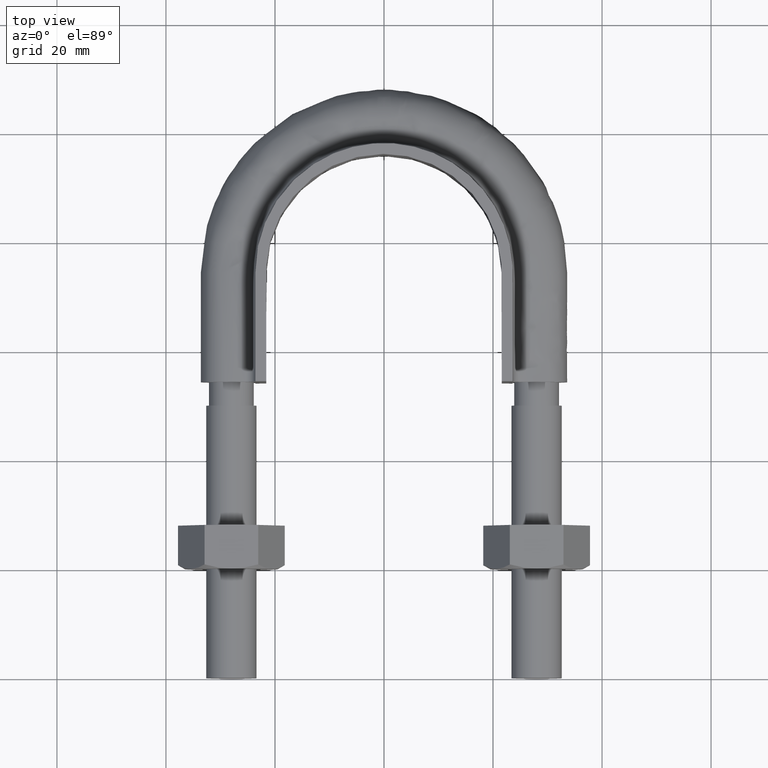
[diagram: clean part render]
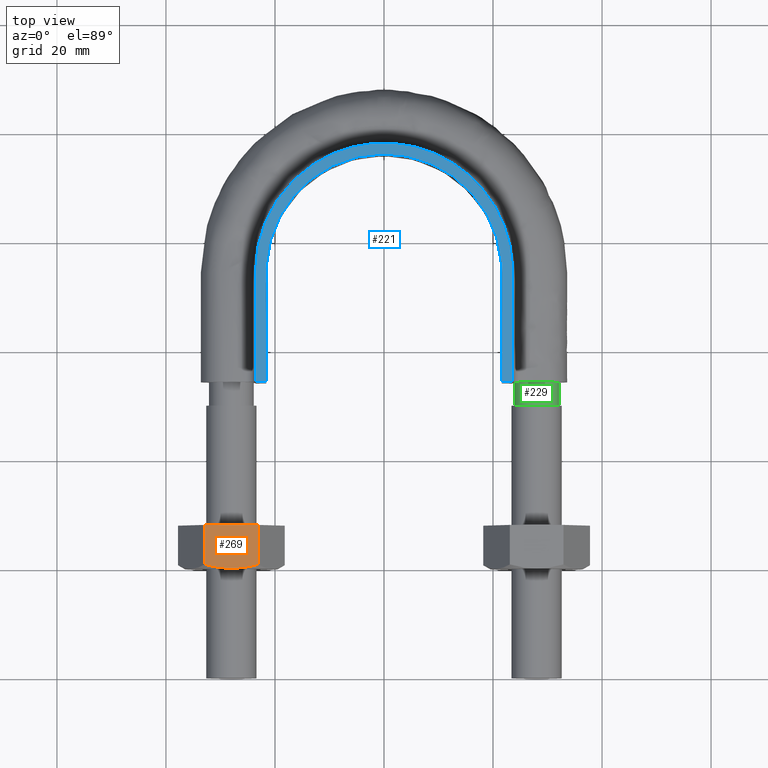
[diagram: same view with three faces highlighted in distinct colors, each labeled with its STEP entity id]
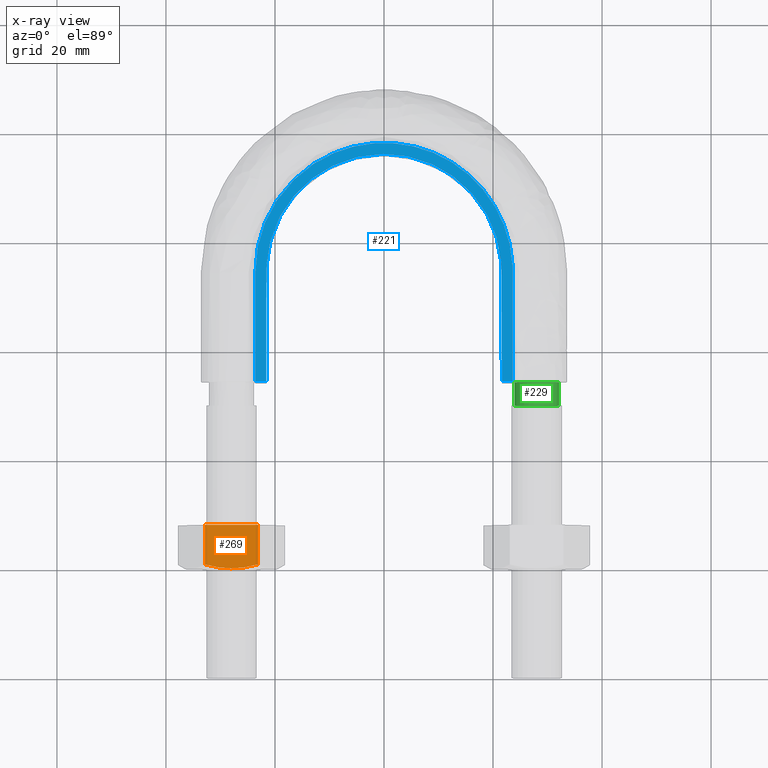
[diagram: x-ray of the same camera — body ghosted, the three highlighted faces saturated]
A machine part, top view with three faces highlighted in distinct colors.
The next image is the same camera in x-ray (body ghosted, the three faces saturated) — at least one of them is partly hidden behind the body in this view.
Their STEP definitions:

[orange] entity #269 — the highlighted planar face has unit normal (0, 0, -1).
#269 = ADVANCED_FACE( '', ( #411 ), #412, .F. );
#411 = FACE_OUTER_BOUND( '', #1408, .T. );
#412 = PLANE( '', #1409 );
#1408 = EDGE_LOOP( '', ( #1806, #1807, #1808, #1809, #1810 ) );
#1409 = AXIS2_PLACEMENT_3D( '', #1811, #1812, #1813 );
#1806 = ORIENTED_EDGE( '', *, *, #2097, .F. );
#1807 = ORIENTED_EDGE( '', *, *, #2087, .F. );
#1808 = ORIENTED_EDGE( '', *, *, #2094, .F. );
#1809 = ORIENTED_EDGE( '', *, *, #2076, .F. );
#1810 = ORIENTED_EDGE( '', *, *, #2101, .F. );
#1811 = CARTESIAN_POINT( '', ( -32.9074772881118, 28.0000000000000, 8.50000000000000 ) );
#1812 = DIRECTION( '', ( 5.55111512312578E-017, 6.12303176911189E-017, -1.00000000000000 ) );
#1813 = DIRECTION( '', ( -1.00000000000000, 0.000000000000000, -5.55111512312578E-017 ) );
#2076 = EDGE_CURVE( '', #2278, #2280, #2281, .T. );
#2087 = EDGE_CURVE( '', #2297, #2292, #2299, .T. );
#2094 = EDGE_CURVE( '', #2280, #2297, #2307, .T. );
#2097 = EDGE_CURVE( '', #2292, #2311, #2312, .T. );
#2101 = EDGE_CURVE( '', #2311, #2278, #2317, .F. );
#2278 = VERTEX_POINT( '', #2804 );
#2280 = VERTEX_POINT( '', #2806 );
#2281 = LINE( '', #2807, #2808 );
#2292 = VERTEX_POINT( '', #2827 );
#2297 = VERTEX_POINT( '', #2837 );
#2299 = B_SPLINE_CURVE_WITH_KNOTS( '', 3, ( #2839, #2840, #2841, #2842, #2843, #2844 ), .UNSPECIFIED., .F., .F., ( 4, 2, 4 ), ( 6.93889390390723E-018, 0.00246745482903606, 0.00493490965807212 ), .UNSPECIFIED. );
#2307 = LINE( '', #2863, #2864 );
#2311 = VERTEX_POINT( '', #2869 );
#2312 = B_SPLINE_CURVE_WITH_KNOTS( '', 3, ( #2870, #2871, #2872, #2873, #2874, #2875 ), .UNSPECIFIED., .F., .F., ( 4, 2, 4 ), ( 3.46944695195361E-018, 0.00246745482903605, 0.00493490965807211 ), .UNSPECIFIED. );
#2317 = LINE( '', #2886, #2887 );
#2804 = CARTESIAN_POINT( '', ( -32.8774993593029, 28.0000000000000, 8.50000000000000 ) );
#2806 = CARTESIAN_POINT( '', ( -23.1225006406971, 28.0000000000000, 8.50000000000000 ) );
#2807 = CARTESIAN_POINT( '', ( -23.1000000000000, 28.0000000000000, 8.50000000000000 ) );
#2808 = VECTOR( '', #3164, 1000.00000000000 );
#2827 = CARTESIAN_POINT( '', ( -28.0000000000000, 20.0000000000000, 8.50000000000000 ) );
#2837 = CARTESIAN_POINT( '', ( -23.1225006406971, 20.7505553499465, 8.50000000000000 ) );
#2839 = CARTESIAN_POINT( '', ( -23.1225006406971, 20.7505553499465, 8.50000000000000 ) );
#2840 = CARTESIAN_POINT( '', ( -23.9194282933227, 20.5215585493657, 8.50000000000000 ) );
#2841 = CARTESIAN_POINT( '', ( -24.7225568243372, 20.3328582843707, 8.50000000000000 ) );
#2842 = CARTESIAN_POINT( '', ( -26.3466937523143, 20.0716504305290, 8.50000000000000 ) );
#2843 = CARTESIAN_POINT( '', ( -27.1678340498093, 20.0000000000000, 8.50000000000000 ) );
#2844 = CARTESIAN_POINT( '', ( -28.0000000000000, 20.0000000000000, 8.50000000000000 ) );
#2863 = CARTESIAN_POINT( '', ( -23.1225006406971, 28.0000000000000, 8.50000000000000 ) );
#2864 = VECTOR( '', #3193, 1000.00000000000 );
#2869 = CARTESIAN_POINT( '', ( -32.8774993593029, 20.7505553499465, 8.50000000000000 ) );
#2870 = CARTESIAN_POINT( '', ( -28.0000000000000, 20.0000000000000, 8.50000000000000 ) );
#2871 = CARTESIAN_POINT( '', ( -28.8321659501907, 20.0000000000000, 8.50000000000000 ) );
#2872 = CARTESIAN_POINT( '', ( -29.6533062476857, 20.0716504305290, 8.50000000000000 ) );
#2873 = CARTESIAN_POINT( '', ( -31.2774431756629, 20.3328582843707, 8.50000000000000 ) );
#2874 = CARTESIAN_POINT( '', ( -32.0805717066773, 20.5215585493657, 8.50000000000000 ) );
#2875 = CARTESIAN_POINT( '', ( -32.8774993593029, 20.7505553499465, 8.50000000000000 ) );
#2886 = CARTESIAN_POINT( '', ( -32.8774993593029, 28.0000000000000, 8.50000000000000 ) );
#2887 = VECTOR( '', #3202, 1000.00000000000 );
#3164 = DIRECTION( '', ( 1.00000000000000, -2.44921270764475E-016, 5.55111512312578E-017 ) );
#3193 = DIRECTION( '', ( -2.44921270764475E-016, -1.00000000000000, -6.12303176911189E-017 ) );
#3202 = DIRECTION( '', ( -2.44921270764475E-016, -1.00000000000000, -6.12303176911189E-017 ) );

[blue] entity #221 — the highlighted planar face has unit normal (0, 0, 1).
#221 = ADVANCED_FACE( '', ( #301 ), #302, .T. );
#301 = FACE_OUTER_BOUND( '', #473, .T. );
#302 = PLANE( '', #474 );
#473 = EDGE_LOOP( '', ( #1480, #1481, #1482, #1483 ) );
#474 = AXIS2_PLACEMENT_3D( '', #1484, #1485, #1486 );
#1480 = ORIENTED_EDGE( '', *, *, #2004, .T. );
#1481 = ORIENTED_EDGE( '', *, *, #2011, .F. );
#1482 = ORIENTED_EDGE( '', *, *, #2012, .T. );
#1483 = ORIENTED_EDGE( '', *, *, #2013, .T. );
#1484 = CARTESIAN_POINT( '', ( 40.0000000000000, 114.300000000000, 12.5000000000000 ) );
#1485 = DIRECTION( '', ( 0.000000000000000, 0.000000000000000, 1.00000000000000 ) );
#1486 = DIRECTION( '', ( 1.00000000000000, 0.000000000000000, 0.000000000000000 ) );
#2004 = EDGE_CURVE( '', #2158, #2155, #2159, .F. );
#2011 = EDGE_CURVE( '', #2170, #2155, #2171, .T. );
#2012 = EDGE_CURVE( '', #2170, #2172, #2173, .F. );
#2013 = EDGE_CURVE( '', #2172, #2158, #2174, .F. );
#2155 = VERTEX_POINT( '', #2405 );
#2158 = VERTEX_POINT( '', #2409 );
#2159 = LINE( '', #2410, #2411 );
#2170 = VERTEX_POINT( '', #2495 );
#2171 = B_SPLINE_CURVE_WITH_KNOTS( '', 3, ( #2496, #2497, #2498, #2499, #2500, #2501, #2502, #2503, #2504, #2505, #2506, #2507, #2508, #2509, #2510, #2511, #2512, #2513, #2514, #2515, #2516, #2517, #2518, #2519, #2520, #2521, #2522, #2523, #2524, #2525, #2526, #2527, #2528, #2529, #2530, #2531, #2532, #2533, #2534, #2535, #2536, #2537, #2538, #2539, #2540, #2541, #2542, #2543, #2544, #2545, #2546, #2547, #2548, #2549, #2550, #2551, #2552, #2553, #2554, #2555, #2556, #2557, #2558, #2559, #2560, #2561, #2562, #2563, #2564, #2565 ), .UNSPECIFIED., .F., .F., ( 4, 1, 1, 1, 2, 2, 2, 2, 2, 2, 2, 2, 2, 2, 2, 2, 2, 2, 2, 2, 2, 2, 2, 2, 2, 2, 2, 2, 2, 2, 2, 2, 2, 2, 1, 1, 1, 4 ), ( 0.000000000000000, 0.0135231659011118, 0.0169039573763897, 0.0185943531140287, 0.0194395509828482, 0.0202847488516677, 0.0219751445893066, 0.0236655403269455, 0.0270463318022234, 0.0287367275398623, 0.0304271232775013, 0.0338079147527792, 0.0371887062280571, 0.0405694977033350, 0.0439502891786130, 0.0456406849162519, 0.0473310806538909, 0.0507118721291688, 0.0524022678668077, 0.0540926636044467, 0.0574734550797246, 0.0591638508173636, 0.0608542465550025, 0.0642350380302805, 0.0659254337679194, 0.0676158295055584, 0.0709966209808363, 0.0726870167184753, 0.0743774124561143, 0.0777582039313922, 0.0811389954066701, 0.0845197868819480, 0.0879005783572259, 0.0887457762260454, 0.0895909740948649, 0.0912813698325039, 0.0946621613077819, 0.108185327208894 ), .UNSPECIFIED. );
#2172 = VERTEX_POINT( '', #2566 );
#2173 = LINE( '', #2567, #2568 );
#2174 = B_SPLINE_CURVE_WITH_KNOTS( '', 3, ( #2569, #2570, #2571, #2572, #2573, #2574, #2575, #2576, #2577, #2578, #2579, #2580, #2581, #2582, #2583, #2584, #2585 ), .UNSPECIFIED., .F., .F., ( 4, 3, 1, 1, 1, 1, 1, 1, 1, 3, 4 ), ( 0.129870129870130, 1.00000000000000, 1.50000000000000, 2.00000000000000, 3.00000000000000, 4.00000000000000, 5.00000000000000, 6.00000000000000, 6.50000000000000, 7.00000000000000, 7.87012987012987 ), .UNSPECIFIED. );
#2405 = CARTESIAN_POINT( '', ( -21.6000000000000, 54.3000000000000, 12.5000000000000 ) );
#2409 = CARTESIAN_POINT( '', ( -23.6000000000000, 54.3000000000000, 12.5000000000000 ) );
#2410 = CARTESIAN_POINT( '', ( 40.0000000000000, 54.3000000000000, 12.5000000000000 ) );
#2411 = VECTOR( '', #3055, 1000.00000000000 );
#2495 = CARTESIAN_POINT( '', ( 21.6000000000000, 54.3000000000000, 12.5000000000000 ) );
#2496 = CARTESIAN_POINT( '', ( 21.6000000000000, 54.3000000000000, 12.5000000000000 ) );
#2497 = CARTESIAN_POINT( '', ( 21.6000000000000, 58.8078030796335, 12.5000000000000 ) );
#2498 = CARTESIAN_POINT( '', ( 21.6000000000000, 64.4425569291754, 12.5000000000000 ) );
#2499 = CARTESIAN_POINT( '', ( 21.6000000000000, 70.6407861636715, 12.5000000000000 ) );
#2500 = CARTESIAN_POINT( '', ( 21.6000000000000, 72.6129500110113, 12.5000000000000 ) );
#2501 = CARTESIAN_POINT( '', ( 21.6000000000000, 73.4581630884425, 12.5000000000000 ) );
#2502 = CARTESIAN_POINT( '', ( 21.6000000000000, 74.0216384733967, 12.5000000000000 ) );
#2503 = CARTESIAN_POINT( '', ( 21.6016868866855, 74.3033862855928, 12.5000000000000 ) );
#2504 = CARTESIAN_POINT( '', ( 21.5941473148947, 75.1485541327496, 12.5000000000000 ) );
#2505 = CARTESIAN_POINT( '', ( 21.5662932291955, 75.7118624196277, 12.5000000000000 ) );
#2506 = CARTESIAN_POINT( '', ( 21.4660466240226, 76.8382118050554, 12.5000000000000 ) );
#2507 = CARTESIAN_POINT( '', ( 21.3934997931487, 77.4007781127302, 12.5000000000000 ) );
#2508 = CARTESIAN_POINT( '', ( 21.1137244660228, 79.0644770260068, 12.5000000000000 ) );
#2509 = CARTESIAN_POINT( '', ( 20.8443432397078, 80.1498681355507, 12.5000000000000 ) );
#2510 = CARTESIAN_POINT( '', ( 20.3169229678080, 81.7426141857047, 12.5000000000000 ) );
#2511 = CARTESIAN_POINT( '', ( 20.1204432842000, 82.2676065264572, 12.5000000000000 ) );
#2512 = CARTESIAN_POINT( '', ( 19.6849320818905, 83.3053996627896, 12.5000000000000 ) );
#2513 = CARTESIAN_POINT( '', ( 19.4446614349743, 83.8204297574000, 12.5000000000000 ) );
#2514 = CARTESIAN_POINT( '', ( 18.6684950229906, 85.3244383250887, 12.5000000000000 ) );
#2515 = CARTESIAN_POINT( '', ( 18.0769270085057, 86.2744513721937, 12.5000000000000 ) );
#2516 = CARTESIAN_POINT( '', ( 16.7529195258009, 88.0743989142740, 12.5000000000000 ) );
#2517 = CARTESIAN_POINT( '', ( 16.0200911873579, 88.9252873863386, 12.5000000000000 ) );
#2518 = CARTESIAN_POINT( '', ( 14.4128259168034, 90.5214747358975, 12.5000000000000 ) );
#2519 = CARTESIAN_POINT( '', ( 13.5580348793817, 91.2474792809737, 12.5000000000000 ) );
#2520 = CARTESIAN_POINT( '', ( 11.7487973458944, 92.5590603088197, 12.5000000000000 ) );
#2521 = CARTESIAN_POINT( '', ( 10.7940352803573, 93.1441921113883, 12.5000000000000 ) );
#2522 = CARTESIAN_POINT( '', ( 9.28291683850486, 93.9106028409483, 12.5000000000000 ) );
#2523 = CARTESIAN_POINT( '', ( 8.76688933898165, 94.1469814262958, 12.5000000000000 ) );
#2524 = CARTESIAN_POINT( '', ( 7.72704803755933, 94.5751653360497, 12.5000000000000 ) );
#2525 = CARTESIAN_POINT( '', ( 7.20104342927320, 94.7681270441960, 12.5000000000000 ) );
#2526 = CARTESIAN_POINT( '', ( 5.60522003708375, 95.2851576032092, 12.5000000000000 ) );
#2527 = CARTESIAN_POINT( '', ( 4.51773658274788, 95.5478751313465, 12.5000000000000 ) );
#2528 = CARTESIAN_POINT( '', ( 2.85023521541969, 95.8159602825122, 12.5000000000000 ) );
#2529 = CARTESIAN_POINT( '', ( 2.28591125961181, 95.8842927632192, 12.5000000000000 ) );
#2530 = CARTESIAN_POINT( '', ( 1.16191586217196, 95.9755534961753, 12.5000000000000 ) );
#2531 = CARTESIAN_POINT( '', ( 0.601211685233152, 95.9988511425481, 12.5000000000000 ) );
#2532 = CARTESIAN_POINT( '', ( -1.07704505152025, 96.0021735987777, 12.5000000000000 ) );
#2533 = CARTESIAN_POINT( '', ( -2.19076731773873, 95.9160681926210, 12.5000000000000 ) );
#2534 = CARTESIAN_POINT( '', ( -3.85383561017253, 95.6571613761925, 12.5000000000000 ) );
#2535 = CARTESIAN_POINT( '', ( -4.40765029596283, 95.5489362348310, 12.5000000000000 ) );
#2536 = CARTESIAN_POINT( '', ( -5.50969437777179, 95.2885553897380, 12.5000000000000 ) );
#2537 = CARTESIAN_POINT( '', ( -6.05215769470156, 95.1378230506362, 12.5000000000000 ) );
#2538 = CARTESIAN_POINT( '', ( -7.65458034955573, 94.6257016671255, 12.5000000000000 ) );
#2539 = CARTESIAN_POINT( '', ( -8.68976887568339, 94.2048598409189, 12.5000000000000 ) );
#2540 = CARTESIAN_POINT( '', ( -10.1920361507628, 93.4523540893674, 12.5000000000000 ) );
#2541 = CARTESIAN_POINT( '', ( -10.6843068104453, 93.1811536314306, 12.5000000000000 ) );
#2542 = CARTESIAN_POINT( '', ( -11.6512116265084, 92.5964230902266, 12.5000000000000 ) );
#2543 = CARTESIAN_POINT( '', ( -12.1245518901083, 92.2835606581345, 12.5000000000000 ) );
#2544 = CARTESIAN_POINT( '', ( -13.4940506802498, 91.2993829505195, 12.5000000000000 ) );
#2545 = CARTESIAN_POINT( '', ( -14.3483977984834, 90.5779831351971, 12.5000000000000 ) );
#2546 = CARTESIAN_POINT( '', ( -15.5445244245929, 89.4008375271324, 12.5000000000000 ) );
#2547 = CARTESIAN_POINT( '', ( -15.9289126706019, 88.9925164105730, 12.5000000000000 ) );
#2548 = CARTESIAN_POINT( '', ( -16.6684043052147, 88.1432793403301, 12.5000000000000 ) );
#2549 = CARTESIAN_POINT( '', ( -17.0248134305993, 87.7004293677336, 12.5000000000000 ) );
#2550 = CARTESIAN_POINT( '', ( -18.0326739447613, 86.3423149081644, 12.5000000000000 ) );
#2551 = CARTESIAN_POINT( '', ( -18.6267452534930, 85.3943045919171, 12.5000000000000 ) );
#2552 = CARTESIAN_POINT( '', ( -19.6599214235238, 83.4134684385162, 12.5000000000000 ) );
#2553 = CARTESIAN_POINT( '', ( -20.1004689641877, 82.3791428767158, 12.5000000000000 ) );
#2554 = CARTESIAN_POINT( '', ( -20.8221292198643, 80.2326486444712, 12.5000000000000 ) );
#2555 = CARTESIAN_POINT( '', ( -21.0954136423923, 79.1448754351828, 12.5000000000000 ) );
#2556 = CARTESIAN_POINT( '', ( -21.4751329492846, 76.9416443697406, 12.5000000000000 ) );
#2557 = CARTESIAN_POINT( '', ( -21.5818004860624, 75.8262251166299, 12.5000000000000 ) );
#2558 = CARTESIAN_POINT( '', ( -21.6019152180314, 74.4131649802125, 12.5000000000000 ) );
#2559 = CARTESIAN_POINT( '', ( -21.6000000000000, 74.1295676581122, 12.5000000000000 ) );
#2560 = CARTESIAN_POINT( '', ( -21.6000000000000, 73.5630085821662, 12.5000000000000 ) );
#2561 = CARTESIAN_POINT( '', ( -21.6000000000000, 72.7131699682470, 12.5000000000000 ) );
#2562 = CARTESIAN_POINT( '', ( -21.6000000000000, 70.7302132024358, 12.5000000000000 ) );
#2563 = CARTESIAN_POINT( '', ( -21.6000000000000, 64.4980633670291, 12.5000000000000 ) );
#2564 = CARTESIAN_POINT( '', ( -21.6000000000000, 58.8324726075685, 12.5000000000000 ) );
#2565 = CARTESIAN_POINT( '', ( -21.6000000000000, 54.3000000000000, 12.5000000000000 ) );
#2566 = CARTESIAN_POINT( '', ( 23.6000000000000, 54.3000000000000, 12.5000000000000 ) );
#2567 = CARTESIAN_POINT( '', ( 40.0000000000000, 54.3000000000000, 12.5000000000000 ) );
#2568 = VECTOR( '', #3058, 1000.00000000000 );
#2569 = CARTESIAN_POINT( '', ( -23.6000000000000, 54.3000000000000, 12.5000000000000 ) );
#2570 = CARTESIAN_POINT( '', ( -23.6000000000000, 61.0000000000000, 12.5000000000000 ) );
#2571 = CARTESIAN_POINT( '', ( -23.6000000000000, 67.7000000000000, 12.5000000000000 ) );
#2572 = CARTESIAN_POINT( '', ( -23.6000000000000, 74.4000000000000, 12.5000000000000 ) );
#2573 = CARTESIAN_POINT( '', ( -23.6000000000000, 76.4494146737192, 12.5000000000000 ) );
#2574 = CARTESIAN_POINT( '', ( -23.0467901016320, 80.5795237676995, 12.5000000000000 ) );
#2575 = CARTESIAN_POINT( '', ( -19.8875260981763, 88.2564442335818, 12.5000000000000 ) );
#2576 = CARTESIAN_POINT( '', ( -12.3513075479443, 95.7943830592662, 12.5000000000000 ) );
#2577 = CARTESIAN_POINT( '', ( 1.77740441903700E-014, 99.1028084703669, 12.5000000000000 ) );
#2578 = CARTESIAN_POINT( '', ( 12.3513075479443, 95.7943830592661, 12.5000000000000 ) );
#2579 = CARTESIAN_POINT( '', ( 19.8875260981763, 88.2564442335818, 12.5000000000000 ) );
#2580 = CARTESIAN_POINT( '', ( 23.0467901016320, 80.5795237676995, 12.5000000000000 ) );
#2581 = CARTESIAN_POINT( '', ( 23.6000000000000, 76.4494146737192, 12.5000000000000 ) );
#2582 = CARTESIAN_POINT( '', ( 23.6000000000000, 74.4000000000000, 12.5000000000000 ) );
#2583 = CARTESIAN_POINT( '', ( 23.6000000000000, 67.7000000000000, 12.5000000000000 ) );
#2584 = CARTESIAN_POINT( '', ( 23.6000000000000, 61.0000000000000, 12.5000000000000 ) );
#2585 = CARTESIAN_POINT( '', ( 23.6000000000000, 54.3000000000000, 12.5000000000000 ) );
#3055 = DIRECTION( '', ( -1.00000000000000, 1.83649404852125E-048, 0.000000000000000 ) );
#3058 = DIRECTION( '', ( -1.00000000000000, 1.83649404852125E-048, 0.000000000000000 ) );

[green] entity #229 — the highlighted cylindrical surface (bore or boss wall) has radius 4.1 mm, axis along (-0, -1, -0).
#229 = ADVANCED_FACE( '', ( #321, #322 ), #323, .T. );
#321 = FACE_OUTER_BOUND( '', #1318, .T. );
#322 = FACE_OUTER_BOUND( '', #1319, .T. );
#323 = CYLINDRICAL_SURFACE( '', #1320, 4.10000000000000 );
#1318 = EDGE_LOOP( '', ( #1553 ) );
#1319 = EDGE_LOOP( '', ( #1554, #1555, #1556, #1557, #1558, #1559, #1560 ) );
#1320 = AXIS2_PLACEMENT_3D( '', #1561, #1562, #1563 );
#1553 = ORIENTED_EDGE( '', *, *, #2040, .T. );
#1554 = ORIENTED_EDGE( '', *, *, #2041, .T. );
#1555 = ORIENTED_EDGE( '', *, *, #2042, .T. );
#1556 = ORIENTED_EDGE( '', *, *, #2043, .T. );
#1557 = ORIENTED_EDGE( '', *, *, #2025, .T. );
#1558 = ORIENTED_EDGE( '', *, *, #2044, .T. );
#1559 = ORIENTED_EDGE( '', *, *, #2045, .T. );
#1560 = ORIENTED_EDGE( '', *, *, #2046, .T. );
#1561 = CARTESIAN_POINT( '', ( 28.0000000000000, 54.3000000000000, 2.02060048380692E-015 ) );
#1562 = DIRECTION( '', ( -2.44921270764475E-016, -1.00000000000000, -6.12303176911189E-017 ) );
#1563 = DIRECTION( '', ( 1.00000000000000, -2.44921270764475E-016, -7.49830360911069E-033 ) );
#2025 = EDGE_CURVE( '', #2195, #2196, #2197, .T. );
#2040 = EDGE_CURVE( '', #2217, #2217, #2218, .T. );
#2041 = EDGE_CURVE( '', #2203, #2201, #2219, .T. );
#2042 = EDGE_CURVE( '', #2201, #2199, #2220, .T. );
#2043 = EDGE_CURVE( '', #2199, #2195, #2221, .T. );
#2044 = EDGE_CURVE( '', #2196, #2207, #2222, .T. );
#2045 = EDGE_CURVE( '', #2207, #2205, #2223, .T. );
#2046 = EDGE_CURVE( '', #2205, #2203, #2224, .T. );
#2195 = VERTEX_POINT( '', #2646 );
#2196 = VERTEX_POINT( '', #2647 );
#2197 = CIRCLE( '', #2648, 4.10000000000000 );
#2199 = VERTEX_POINT( '', #2653 );
#2201 = VERTEX_POINT( '', #2658 );
#2203 = VERTEX_POINT( '', #2663 );
#2205 = VERTEX_POINT( '', #2668 );
#2207 = VERTEX_POINT( '', #2673 );
#2217 = VERTEX_POINT( '', #2710 );
#2218 = CIRCLE( '', #2711, 4.10000000000000 );
#2219 = CIRCLE( '', #2712, 4.10000000000000 );
#2220 = CIRCLE( '', #2713, 4.10000000000000 );
#2221 = CIRCLE( '', #2714, 4.10000000000000 );
#2222 = CIRCLE( '', #2715, 4.10000000000000 );
#2223 = CIRCLE( '', #2716, 4.10000000000000 );
#2224 = CIRCLE( '', #2717, 4.10000000000000 );
#2646 = CARTESIAN_POINT( '', ( 23.9000000000000, 54.3000000000000, -2.72765919113833E-014 ) );
#2647 = CARTESIAN_POINT( '', ( 25.4436918123816, 54.3000000000000, -3.20550907812087 ) );
#2648 = AXIS2_PLACEMENT_3D( '', #3084, #3085, #3086 );
#2653 = CARTESIAN_POINT( '', ( 25.4436918123792, 54.3000000000000, 3.20550907811889 ) );
#2658 = CARTESIAN_POINT( '', ( 28.9123358292209, 54.3000000000000, 3.99720443994547 ) );
#2663 = CARTESIAN_POINT( '', ( 31.6939723583998, 54.3000000000000, 1.77892333038222 ) );
#2668 = CARTESIAN_POINT( '', ( 31.6939723583999, 54.3000000000000, -1.77892333038213 ) );
#2673 = CARTESIAN_POINT( '', ( 28.9123358292214, 54.3000000000000, -3.99720443994536 ) );
#2710 = CARTESIAN_POINT( '', ( 32.1000000000000, 50.0000000000000, 1.75731011773511E-015 ) );
#2711 = AXIS2_PLACEMENT_3D( '', #3087, #3088, #3089 );
#2712 = AXIS2_PLACEMENT_3D( '', #3090, #3091, #3092 );
#2713 = AXIS2_PLACEMENT_3D( '', #3093, #3094, #3095 );
#2714 = AXIS2_PLACEMENT_3D( '', #3096, #3097, #3098 );
#2715 = AXIS2_PLACEMENT_3D( '', #3099, #3100, #3101 );
#2716 = AXIS2_PLACEMENT_3D( '', #3102, #3103, #3104 );
#2717 = AXIS2_PLACEMENT_3D( '', #3105, #3106, #3107 );
#3084 = CARTESIAN_POINT( '', ( 28.0000000000000, 54.3000000000000, 2.02060048380692E-015 ) );
#3085 = DIRECTION( '', ( -2.44921270764475E-016, -1.00000000000000, -6.12303176911189E-017 ) );
#3086 = DIRECTION( '', ( 1.00000000000000, -2.44921270764475E-016, -7.49830360911069E-033 ) );
#3087 = CARTESIAN_POINT( '', ( 28.0000000000000, 50.0000000000000, 1.75731011773511E-015 ) );
#3088 = DIRECTION( '', ( 2.44921270764475E-016, 1.00000000000000, 6.12303176911188E-017 ) );
#3089 = DIRECTION( '', ( 1.00000000000000, -2.44921270764475E-016, 0.000000000000000 ) );
#3090 = CARTESIAN_POINT( '', ( 28.0000000000000, 54.3000000000000, 2.02060048380692E-015 ) );
#3091 = DIRECTION( '', ( -2.44921270764475E-016, -1.00000000000000, -6.12303176911189E-017 ) );
#3092 = DIRECTION( '', ( 1.00000000000000, -2.44921270764475E-016, -7.49830360911069E-033 ) );
#3093 = CARTESIAN_POINT( '', ( 28.0000000000000, 54.3000000000000, 2.02060048380692E-015 ) );
#3094 = DIRECTION( '', ( -2.44921270764475E-016, -1.00000000000000, -6.12303176911189E-017 ) );
#3095 = DIRECTION( '', ( 1.00000000000000, -2.44921270764475E-016, -7.49830360911069E-033 ) );
#3096 = CARTESIAN_POINT( '', ( 28.0000000000000, 54.3000000000000, 2.02060048380692E-015 ) );
#3097 = DIRECTION( '', ( -2.44921270764475E-016, -1.00000000000000, -6.12303176911189E-017 ) );
#3098 = DIRECTION( '', ( 1.00000000000000, -2.44921270764475E-016, -7.49830360911069E-033 ) );
#3099 = CARTESIAN_POINT( '', ( 28.0000000000000, 54.3000000000000, 2.02060048380692E-015 ) );
#3100 = DIRECTION( '', ( -2.44921270764475E-016, -1.00000000000000, -6.12303176911189E-017 ) );
#3101 = DIRECTION( '', ( 1.00000000000000, -2.44921270764475E-016, -7.49830360911069E-033 ) );
#3102 = CARTESIAN_POINT( '', ( 28.0000000000000, 54.3000000000000, 2.02060048380692E-015 ) );
#3103 = DIRECTION( '', ( -2.44921270764475E-016, -1.00000000000000, -6.12303176911189E-017 ) );
#3104 = DIRECTION( '', ( 1.00000000000000, -2.44921270764475E-016, -7.49830360911069E-033 ) );
#3105 = CARTESIAN_POINT( '', ( 28.0000000000000, 54.3000000000000, 2.02060048380692E-015 ) );
#3106 = DIRECTION( '', ( -2.44921270764475E-016, -1.00000000000000, -6.12303176911189E-017 ) );
#3107 = DIRECTION( '', ( 1.00000000000000, -2.44921270764475E-016, -7.49830360911069E-033 ) );